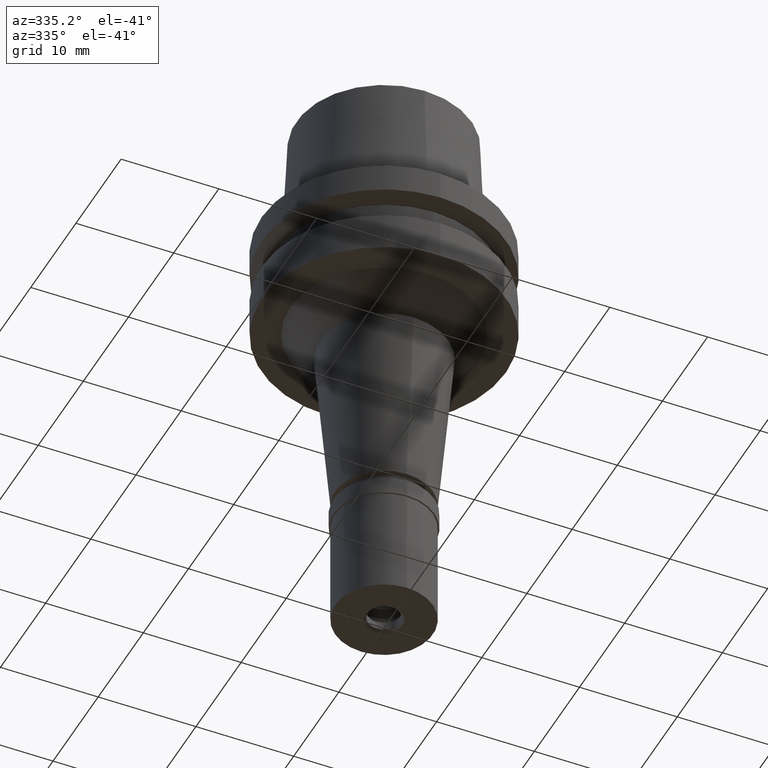
[diagram: clean part render]
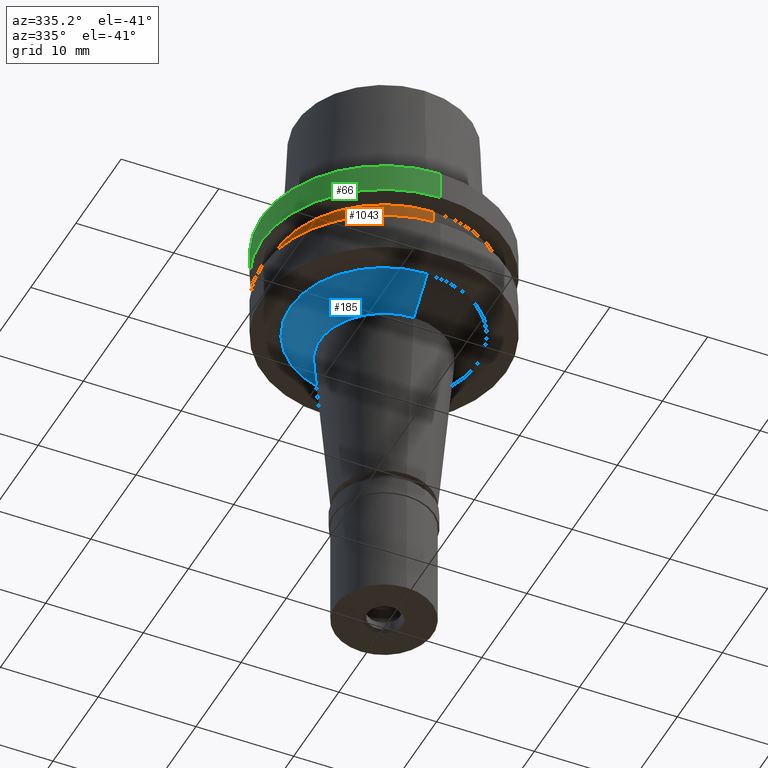
[diagram: same view with three faces highlighted in distinct colors, each labeled with its STEP entity id]
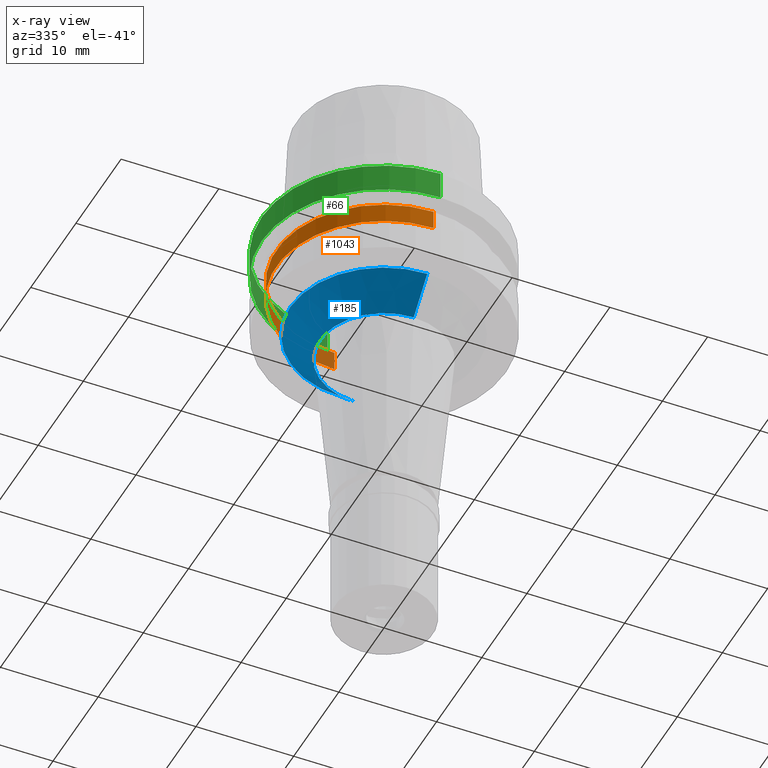
[diagram: x-ray of the same camera — body ghosted, the three highlighted faces saturated]
A machine part, auxiliary view with three faces highlighted in distinct colors.
The next image is the same camera in x-ray (body ghosted, the three faces saturated) — at least one of them is partly hidden behind the body in this view.
Their STEP definitions:

[orange] entity #1043 — the highlighted cylindrical surface (partial cylindrical patch) has radius 11 mm, axis along (0, 0, 1).
#47 = CYLINDRICAL_SURFACE ( 'NONE', #2218, 11.00000000000000000 ) ;
#94 = ORIENTED_EDGE ( 'NONE', *, *, #260, .T. ) ;
#260 = EDGE_CURVE ( 'NONE', #1311, #1256, #876, .T. ) ;
#265 = ORIENTED_EDGE ( 'NONE', *, *, #1845, .T. ) ;
#422 = CARTESIAN_POINT ( 'NONE',  ( 0.0000000000000000000, 0.0000000000000000000, -44.01500000000000057 ) ) ;
#586 = EDGE_CURVE ( 'NONE', #1628, #1311, #2538, .T. ) ;
#596 = ORIENTED_EDGE ( 'NONE', *, *, #1332, .F. ) ;
#774 = DIRECTION ( 'NONE',  ( 0.0000000000000000000, 1.000000000000000000, 0.0000000000000000000 ) ) ;
#785 = LINE ( 'NONE', #1428, #1782 ) ;
#876 = CIRCLE ( 'NONE', #2127, 11.00000000000000000 ) ;
#899 = DIRECTION ( 'NONE',  ( 0.0000000000000000000, 0.0000000000000000000, 1.000000000000000000 ) ) ;
#1043 = ADVANCED_FACE ( 'NONE', ( #1104 ), #47, .T. ) ;
#1104 = FACE_OUTER_BOUND ( 'NONE', #1873, .T. ) ;
#1120 = DIRECTION ( 'NONE',  ( 0.0000000000000000000, -1.000000000000000000, 0.0000000000000000000 ) ) ;
#1252 = CARTESIAN_POINT ( 'NONE',  ( 0.0000000000000000000, 11.00000000000000000, -5.500000000000000000 ) ) ;
#1256 = VERTEX_POINT ( 'NONE', #1373 ) ;
#1289 = DIRECTION ( 'NONE',  ( 0.0000000000000000000, 0.0000000000000000000, -1.000000000000000000 ) ) ;
#1311 = VERTEX_POINT ( 'NONE', #1252 ) ;
#1325 = DIRECTION ( 'NONE',  ( 0.0000000000000000000, 0.0000000000000000000, -1.000000000000000000 ) ) ;
#1332 = EDGE_CURVE ( 'NONE', #2635, #1256, #785, .T. ) ;
#1373 = CARTESIAN_POINT ( 'NONE',  ( 0.0000000000000000000, -11.00000000000000000, -5.500000000000000000 ) ) ;
#1428 = CARTESIAN_POINT ( 'NONE',  ( 0.0000000000000000000, -11.00000000000000000, -3.500000000000000000 ) ) ;
#1469 = CARTESIAN_POINT ( 'NONE',  ( 0.0000000000000000000, 11.00000000000000000, -3.500000000000000000 ) ) ;
#1497 = CARTESIAN_POINT ( 'NONE',  ( 0.0000000000000000000, 11.00000000000000000, -3.500000000000000000 ) ) ;
#1557 = DIRECTION ( 'NONE',  ( 0.0000000000000000000, 0.0000000000000000000, 1.000000000000000000 ) ) ;
#1569 = CARTESIAN_POINT ( 'NONE',  ( 0.0000000000000000000, -11.00000000000000000, -3.500000000000000000 ) ) ;
#1628 = VERTEX_POINT ( 'NONE', #1469 ) ;
#1726 = CARTESIAN_POINT ( 'NONE',  ( 0.0000000000000000000, 0.0000000000000000000, -3.500000000000000000 ) ) ;
#1782 = VECTOR ( 'NONE', #1813, 1000.000000000000000 ) ;
#1813 = DIRECTION ( 'NONE',  ( 0.0000000000000000000, 0.0000000000000000000, -1.000000000000000000 ) ) ;
#1845 = EDGE_CURVE ( 'NONE', #2635, #1628, #2473, .T. ) ;
#1873 = EDGE_LOOP ( 'NONE', ( #94, #596, #265, #2475 ) ) ;
#1912 = VECTOR ( 'NONE', #1289, 1000.000000000000000 ) ;
#2011 = CARTESIAN_POINT ( 'NONE',  ( 0.0000000000000000000, 0.0000000000000000000, -5.500000000000000000 ) ) ;
#2127 = AXIS2_PLACEMENT_3D ( 'NONE', #2011, #1557, #774 ) ;
#2218 = AXIS2_PLACEMENT_3D ( 'NONE', #422, #899, #2534 ) ;
#2473 = CIRCLE ( 'NONE', #2693, 11.00000000000000000 ) ;
#2475 = ORIENTED_EDGE ( 'NONE', *, *, #586, .T. ) ;
#2534 = DIRECTION ( 'NONE',  ( 0.0000000000000000000, 1.000000000000000000, 0.0000000000000000000 ) ) ;
#2538 = LINE ( 'NONE', #1497, #1912 ) ;
#2635 = VERTEX_POINT ( 'NONE', #1569 ) ;
#2693 = AXIS2_PLACEMENT_3D ( 'NONE', #1726, #1325, #1120 ) ;

[blue] entity #185 — the highlighted conical surface has half-angle 45 deg.
#12 = CARTESIAN_POINT ( 'NONE',  ( 0.0000000000000000000, 6.574795943467000470, -13.00000000000000000 ) ) ;
#92 = EDGE_CURVE ( 'NONE', #1777, #2251, #1350, .T. ) ;
#185 = ADVANCED_FACE ( 'NONE', ( #467 ), #921, .T. ) ;
#209 = DIRECTION ( 'NONE',  ( 0.0000000000000000000, 0.0000000000000000000, -1.000000000000000000 ) ) ;
#224 = CARTESIAN_POINT ( 'NONE',  ( 0.0000000000000000000, 9.574795943466998693, -10.00000000000000000 ) ) ;
#347 = AXIS2_PLACEMENT_3D ( 'NONE', #1201, #2622, #1383 ) ;
#372 = ORIENTED_EDGE ( 'NONE', *, *, #92, .F. ) ;
#387 = AXIS2_PLACEMENT_3D ( 'NONE', #2284, #209, #411 ) ;
#398 = EDGE_LOOP ( 'NONE', ( #372, #2657, #1342, #486 ) ) ;
#411 = DIRECTION ( 'NONE',  ( 0.0000000000000000000, -1.000000000000000000, 0.0000000000000000000 ) ) ;
#467 = FACE_OUTER_BOUND ( 'NONE', #398, .T. ) ;
#486 = ORIENTED_EDGE ( 'NONE', *, *, #1765, .T. ) ;
#614 = VECTOR ( 'NONE', #2537, 1000.000000000000114 ) ;
#648 = CARTESIAN_POINT ( 'NONE',  ( 0.0000000000000000000, -9.574795943466998693, -10.00000000000000000 ) ) ;
#698 = DIRECTION ( 'NONE',  ( 0.0000000000000000000, 1.000000000000000000, 0.0000000000000000000 ) ) ;
#758 = CARTESIAN_POINT ( 'NONE',  ( 0.0000000000000000000, 9.574795943466998693, -10.00000000000000000 ) ) ;
#888 = CARTESIAN_POINT ( 'NONE',  ( 0.0000000000000000000, -6.574795943467000470, -13.00000000000000000 ) ) ;
#921 = CONICAL_SURFACE ( 'NONE', #1702, 8.074795943467000470, 0.7853981633972997312 ) ;
#1127 = DIRECTION ( 'NONE',  ( 0.0000000000000000000, 0.0000000000000000000, 1.000000000000000000 ) ) ;
#1162 = CARTESIAN_POINT ( 'NONE',  ( 0.0000000000000000000, -9.574795943466998693, -10.00000000000000000 ) ) ;
#1201 = CARTESIAN_POINT ( 'NONE',  ( 0.0000000000000000000, 0.0000000000000000000, -10.00000000000000000 ) ) ;
#1285 = VERTEX_POINT ( 'NONE', #758 ) ;
#1342 = ORIENTED_EDGE ( 'NONE', *, *, #2642, .T. ) ;
#1350 = CIRCLE ( 'NONE', #387, 6.574795943467000470 ) ;
#1383 = DIRECTION ( 'NONE',  ( 0.0000000000000000000, -1.000000000000000000, 0.0000000000000000000 ) ) ;
#1447 = CIRCLE ( 'NONE', #347, 9.574795943466998693 ) ;
#1702 = AXIS2_PLACEMENT_3D ( 'NONE', #1896, #1127, #698 ) ;
#1765 = EDGE_CURVE ( 'NONE', #1285, #2251, #2512, .T. ) ;
#1777 = VERTEX_POINT ( 'NONE', #888 ) ;
#1829 = VECTOR ( 'NONE', #2301, 1000.000000000000114 ) ;
#1886 = EDGE_CURVE ( 'NONE', #2015, #1777, #2499, .T. ) ;
#1896 = CARTESIAN_POINT ( 'NONE',  ( 0.0000000000000000000, 0.0000000000000000000, -11.50000000000000000 ) ) ;
#2015 = VERTEX_POINT ( 'NONE', #1162 ) ;
#2251 = VERTEX_POINT ( 'NONE', #12 ) ;
#2284 = CARTESIAN_POINT ( 'NONE',  ( 0.0000000000000000000, 0.0000000000000000000, -13.00000000000000000 ) ) ;
#2301 = DIRECTION ( 'NONE',  ( 0.0000000000000000000, 0.7071067811865975328, -0.7071067811864976127 ) ) ;
#2499 = LINE ( 'NONE', #648, #1829 ) ;
#2512 = LINE ( 'NONE', #224, #614 ) ;
#2537 = DIRECTION ( 'NONE',  ( 0.0000000000000000000, -0.7071067811865975328, -0.7071067811864976127 ) ) ;
#2622 = DIRECTION ( 'NONE',  ( 0.0000000000000000000, 0.0000000000000000000, -1.000000000000000000 ) ) ;
#2642 = EDGE_CURVE ( 'NONE', #2015, #1285, #1447, .T. ) ;
#2657 = ORIENTED_EDGE ( 'NONE', *, *, #1886, .F. ) ;

[green] entity #66 — the highlighted cylindrical surface (partial cylindrical patch) has radius 12.5 mm, axis along (0, 0, 1).
#44 = ORIENTED_EDGE ( 'NONE', *, *, #835, .T. ) ;
#66 = ADVANCED_FACE ( 'NONE', ( #2265 ), #821, .T. ) ;
#183 = DIRECTION ( 'NONE',  ( 0.0000000000000000000, 0.0000000000000000000, 1.000000000000000000 ) ) ;
#191 = CARTESIAN_POINT ( 'NONE',  ( 0.0000000000000000000, 12.50000000000000000, 8.526512829120999020E-14 ) ) ;
#391 = DIRECTION ( 'NONE',  ( 0.0000000000000000000, 1.000000000000000000, 0.0000000000000000000 ) ) ;
#432 = CARTESIAN_POINT ( 'NONE',  ( 0.0000000000000000000, 12.50000000000000000, -2.912286759727999996 ) ) ;
#454 = EDGE_CURVE ( 'NONE', #2490, #781, #615, .T. ) ;
#496 = DIRECTION ( 'NONE',  ( 0.0000000000000000000, 2.445909868662999674E-13, -1.000000000000000000 ) ) ;
#581 = DIRECTION ( 'NONE',  ( 0.0000000000000000000, 0.0000000000000000000, -1.000000000000000000 ) ) ;
#601 = CARTESIAN_POINT ( 'NONE',  ( 0.0000000000000000000, 0.0000000000000000000, -2.912286759726999907 ) ) ;
#615 = CIRCLE ( 'NONE', #2053, 12.50000000000000000 ) ;
#716 = EDGE_LOOP ( 'NONE', ( #2646, #881, #2581, #44 ) ) ;
#781 = VERTEX_POINT ( 'NONE', #191 ) ;
#809 = DIRECTION ( 'NONE',  ( 0.0000000000000000000, -1.000000000000000000, 0.0000000000000000000 ) ) ;
#821 = CYLINDRICAL_SURFACE ( 'NONE', #1273, 12.50000000000000000 ) ;
#833 = DIRECTION ( 'NONE',  ( 0.0000000000000000000, 1.000000000000000000, 0.0000000000000000000 ) ) ;
#835 = EDGE_CURVE ( 'NONE', #781, #1595, #1858, .T. ) ;
#881 = ORIENTED_EDGE ( 'NONE', *, *, #2448, .F. ) ;
#954 = CARTESIAN_POINT ( 'NONE',  ( 0.0000000000000000000, -12.50000000000000000, 8.526512829120999020E-14 ) ) ;
#1130 = CARTESIAN_POINT ( 'NONE',  ( 0.0000000000000000000, -12.50000000000000000, 3.315866100213999871E-14 ) ) ;
#1262 = CARTESIAN_POINT ( 'NONE',  ( 0.0000000000000000000, -12.50000000000000000, -2.912286759727999996 ) ) ;
#1273 = AXIS2_PLACEMENT_3D ( 'NONE', #2070, #183, #833 ) ;
#1434 = DIRECTION ( 'NONE',  ( 0.0000000000000000000, 0.0000000000000000000, 1.000000000000000000 ) ) ;
#1480 = CIRCLE ( 'NONE', #2262, 12.50000000000000000 ) ;
#1483 = VERTEX_POINT ( 'NONE', #1262 ) ;
#1595 = VERTEX_POINT ( 'NONE', #432 ) ;
#1858 = LINE ( 'NONE', #2644, #2046 ) ;
#2039 = CARTESIAN_POINT ( 'NONE',  ( 0.0000000000000000000, 0.0000000000000000000, 8.526512829120999020E-14 ) ) ;
#2046 = VECTOR ( 'NONE', #2421, 1000.000000000000000 ) ;
#2053 = AXIS2_PLACEMENT_3D ( 'NONE', #2039, #581, #809 ) ;
#2070 = CARTESIAN_POINT ( 'NONE',  ( 0.0000000000000000000, 0.0000000000000000000, -44.01500000000000057 ) ) ;
#2209 = EDGE_CURVE ( 'NONE', #1595, #1483, #1480, .T. ) ;
#2262 = AXIS2_PLACEMENT_3D ( 'NONE', #601, #1434, #391 ) ;
#2265 = FACE_OUTER_BOUND ( 'NONE', #716, .T. ) ;
#2353 = LINE ( 'NONE', #1130, #2554 ) ;
#2421 = DIRECTION ( 'NONE',  ( 0.0000000000000000000, -2.445909868662999674E-13, -1.000000000000000000 ) ) ;
#2448 = EDGE_CURVE ( 'NONE', #2490, #1483, #2353, .T. ) ;
#2490 = VERTEX_POINT ( 'NONE', #954 ) ;
#2554 = VECTOR ( 'NONE', #496, 1000.000000000000000 ) ;
#2581 = ORIENTED_EDGE ( 'NONE', *, *, #454, .T. ) ;
#2644 = CARTESIAN_POINT ( 'NONE',  ( 0.0000000000000000000, 12.50000000000000000, 3.315866100213999871E-14 ) ) ;
#2646 = ORIENTED_EDGE ( 'NONE', *, *, #2209, .T. ) ;